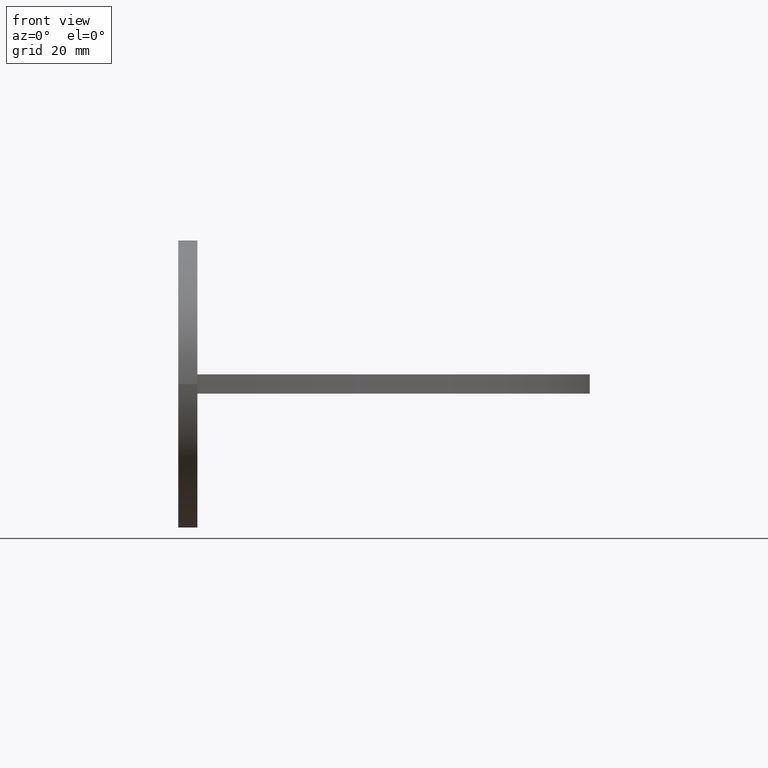
[diagram: clean part render]
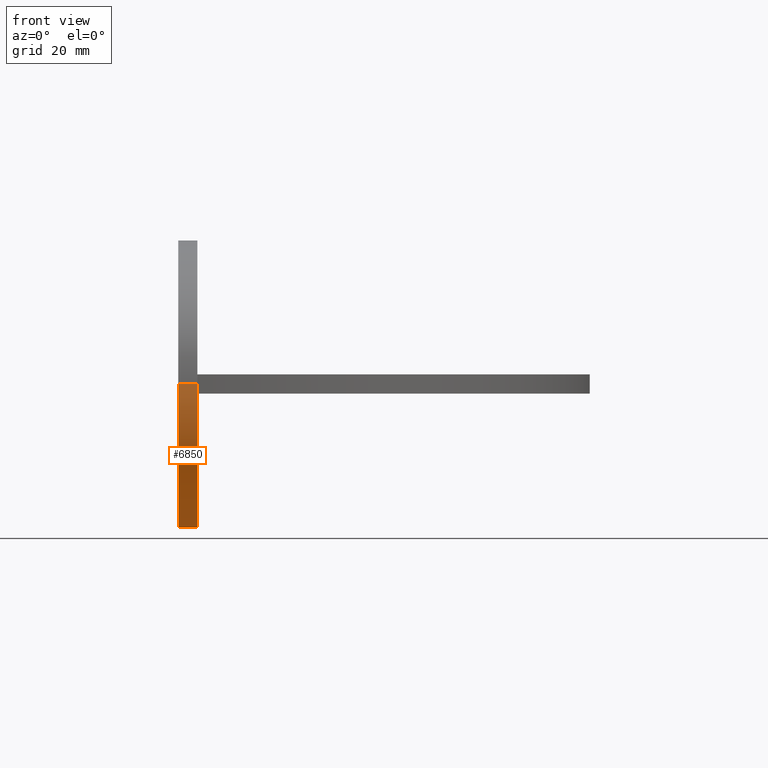
[diagram: same view with one face highlighted and labeled with its STEP entity id]
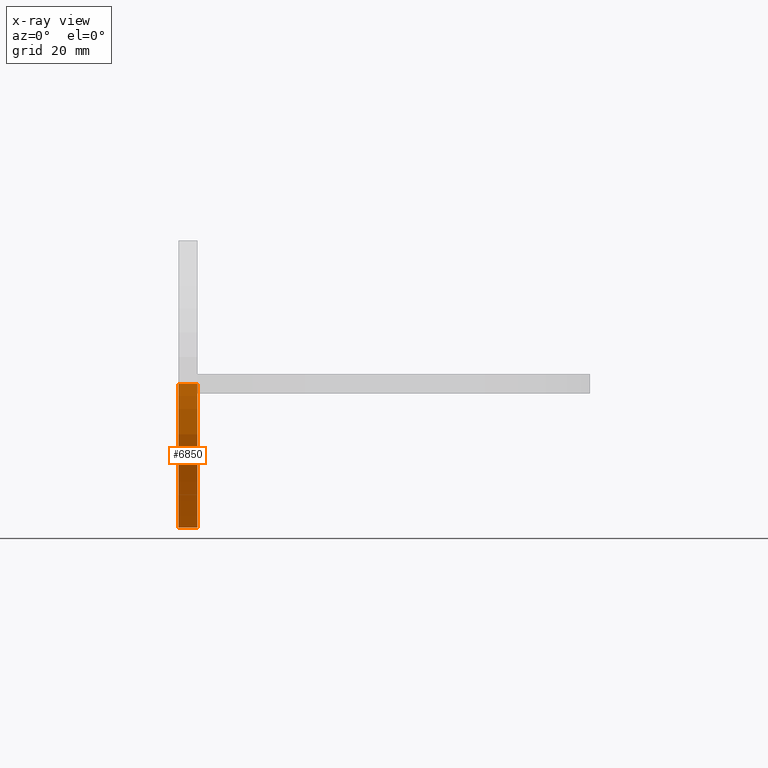
[diagram: x-ray of the same camera — body ghosted, the highlighted face saturated]
A machine part, front view. The second image highlights one B-rep face of the part: STEP entity #6850.
The next image is the same camera in x-ray: the body ghosted, the highlighted face saturated — about 0% of this face is hidden behind the body in this view.
In plain terms, the highlighted face is a freeform B-spline surface patch.
Its self-contained STEP definition (entity closure, byte-faithful):
#50 = CARTESIAN_POINT ( 'NONE',  ( -3.197312206659752172E-12, -40.00000000000004974, -59.99999999999999289 ) ) ;
#89 = CARTESIAN_POINT ( 'NONE',  ( -3.197095366225255475E-12, -40.00000000000005684, -3.673940397442059178E-15 ) ) ;
#954 = VERTEX_POINT ( 'NONE', #4424 ) ;
#1279 =( BOUNDED_CURVE ( )  B_SPLINE_CURVE ( 3, ( #1662, #10688, #10603, #5264 ),
 .UNSPECIFIED., .F., .T. ) 
 B_SPLINE_CURVE_WITH_KNOTS ( ( 4, 4 ),
 ( 0.000000000000000000, 3.141592653589793116 ),
 .UNSPECIFIED. ) 
 CURVE ( )  GEOMETRIC_REPRESENTATION_ITEM ( )  RATIONAL_B_SPLINE_CURVE ( ( 1.000000000000000000, 0.3333333333333333703, 0.3333333333333333703, 1.000000000000000000 ) ) 
 REPRESENTATION_ITEM ( '' )  );
#1662 = CARTESIAN_POINT ( 'NONE',  ( -3.999999999996803002, 40.00000000000037659, 0.000000000000000000 ) ) ;
#1672 = EDGE_CURVE ( 'NONE', #11508, #5265, #1279, .T. ) ;
#2052 = VERTEX_POINT ( 'NONE', #9369 ) ;
#2201 = EDGE_LOOP ( 'NONE', ( #2565, #5327, #10379, #3013 ) ) ;
#2565 = ORIENTED_EDGE ( 'NONE', *, *, #11637, .F. ) ;
#2871 = CARTESIAN_POINT ( 'NONE',  ( -3.999999999996803002, 40.00000000000037659, 0.000000000000000000 ) ) ;
#3013 = ORIENTED_EDGE ( 'NONE', *, *, #7988, .T. ) ;
#3361 =( BOUNDED_SURFACE ( )  B_SPLINE_SURFACE ( 3, 1, ( 
 ( #2871, #5438 ),
 ( #9882, #10819 ),
 ( #5401, #50 ),
 ( #6297, #89 ) ),
 .UNSPECIFIED., .F., .F., .F. ) 
 B_SPLINE_SURFACE_WITH_KNOTS ( ( 4, 4 ),
 ( 2, 2 ),
 ( 0.000000000000000000, 1.000000000000000000 ),
 ( 0.000000000000000000, 1.000000000000000000 ),
 .UNSPECIFIED. ) 
 GEOMETRIC_REPRESENTATION_ITEM ( )  RATIONAL_B_SPLINE_SURFACE ( (
 ( 1.000000000000000000, 1.000000000000000000),
 ( 0.3333333333333333703, 0.3333333333333333703),
 ( 0.3333333333333333703, 0.3333333333333333703),
 ( 1.000000000000000000, 1.000000000000000000) ) ) 
 REPRESENTATION_ITEM ( '' )  SURFACE ( )  );
#3843 = DIRECTION ( 'NONE',  ( 1.000000000000000000, -7.993605777301128353E-14, -0.000000000000000000 ) ) ;
#4226 = CARTESIAN_POINT ( 'NONE',  ( -3.999999999996803002, 40.00000000000037659, 0.000000000000000000 ) ) ;
#4424 = CARTESIAN_POINT ( 'NONE',  ( -3.197442310920455683E-12, -40.00000000000005684, -3.673940397442059178E-15 ) ) ;
#5264 = CARTESIAN_POINT ( 'NONE',  ( -4.000000000003197442, -39.99999999999973710, -3.673940397442059178E-15 ) ) ;
#5265 = VERTEX_POINT ( 'NONE', #7078 ) ;
#5327 = ORIENTED_EDGE ( 'NONE', *, *, #1672, .F. ) ;
#5401 = CARTESIAN_POINT ( 'NONE',  ( -4.000000000003197442, -39.99999999999972999, -59.99999999999999289 ) ) ;
#5438 = CARTESIAN_POINT ( 'NONE',  ( 3.197095366225255475E-12, 40.00000000000005684, 0.000000000000000000 ) ) ;
#5499 = LINE ( 'NONE', #9228, #10598 ) ;
#6277 = EDGE_CURVE ( 'NONE', #11508, #2052, #5499, .T. ) ;
#6297 = CARTESIAN_POINT ( 'NONE',  ( -4.000000000003197442, -39.99999999999973710, -3.673940397442059178E-15 ) ) ;
#6850 = ADVANCED_FACE ( 'NONE', ( #8317 ), #3361, .F. ) ;
#7078 = CARTESIAN_POINT ( 'NONE',  ( -4.000000000003197442, -39.99999999999973710, -3.673940397442059178E-15 ) ) ;
#7234 = CARTESIAN_POINT ( 'NONE',  ( -4.000000000003197442, -39.99999999999973710, -3.673940397442059178E-15 ) ) ;
#7274 = DIRECTION ( 'NONE',  ( 1.000000000000000000, -7.993605777301128353E-14, -0.000000000000000000 ) ) ;
#7758 = CARTESIAN_POINT ( 'NONE',  ( -3.197442310920455279E-12, -40.00000000000004974, -60.00000000000000711 ) ) ;
#7988 = EDGE_CURVE ( 'NONE', #2052, #954, #11391, .T. ) ;
#8317 = FACE_OUTER_BOUND ( 'NONE', #2201, .T. ) ;
#8472 = LINE ( 'NONE', #7234, #9166 ) ;
#8702 = CARTESIAN_POINT ( 'NONE',  ( -3.197442310920455683E-12, -40.00000000000005684, -3.673940397442059178E-15 ) ) ;
#9166 = VECTOR ( 'NONE', #7274, 1000.000000000000000 ) ;
#9228 = CARTESIAN_POINT ( 'NONE',  ( -3.999999999996803002, 40.00000000000037659, 0.000000000000000000 ) ) ;
#9369 = CARTESIAN_POINT ( 'NONE',  ( 3.197442310920455683E-12, 40.00000000000005684, 0.000000000000000000 ) ) ;
#9478 = CARTESIAN_POINT ( 'NONE',  ( 3.197442310920456087E-12, 40.00000000000005684, -60.00000000000000711 ) ) ;
#9882 = CARTESIAN_POINT ( 'NONE',  ( -3.999999999996802558, 40.00000000000037659, -59.99999999999999289 ) ) ;
#10379 = ORIENTED_EDGE ( 'NONE', *, *, #6277, .T. ) ;
#10496 = CARTESIAN_POINT ( 'NONE',  ( 3.197442310920455683E-12, 40.00000000000005684, 0.000000000000000000 ) ) ;
#10598 = VECTOR ( 'NONE', #3843, 1000.000000000000000 ) ;
#10603 = CARTESIAN_POINT ( 'NONE',  ( -4.000000000003197442, -39.99999999999972999, -60.00000000000000711 ) ) ;
#10688 = CARTESIAN_POINT ( 'NONE',  ( -3.999999999996803446, 40.00000000000037659, -60.00000000000000711 ) ) ;
#10819 = CARTESIAN_POINT ( 'NONE',  ( 3.197312206659752172E-12, 40.00000000000005684, -59.99999999999999289 ) ) ;
#11391 =( BOUNDED_CURVE ( )  B_SPLINE_CURVE ( 3, ( #10496, #9478, #7758, #8702 ),
 .UNSPECIFIED., .F., .F. ) 
 B_SPLINE_CURVE_WITH_KNOTS ( ( 4, 4 ),
 ( 0.000000000000000000, 3.141592653589793116 ),
 .UNSPECIFIED. ) 
 CURVE ( )  GEOMETRIC_REPRESENTATION_ITEM ( )  RATIONAL_B_SPLINE_CURVE ( ( 1.000000000000000000, 0.3333333333333333703, 0.3333333333333333703, 1.000000000000000000 ) ) 
 REPRESENTATION_ITEM ( '' )  );
#11508 = VERTEX_POINT ( 'NONE', #4226 ) ;
#11637 = EDGE_CURVE ( 'NONE', #5265, #954, #8472, .T. ) ;